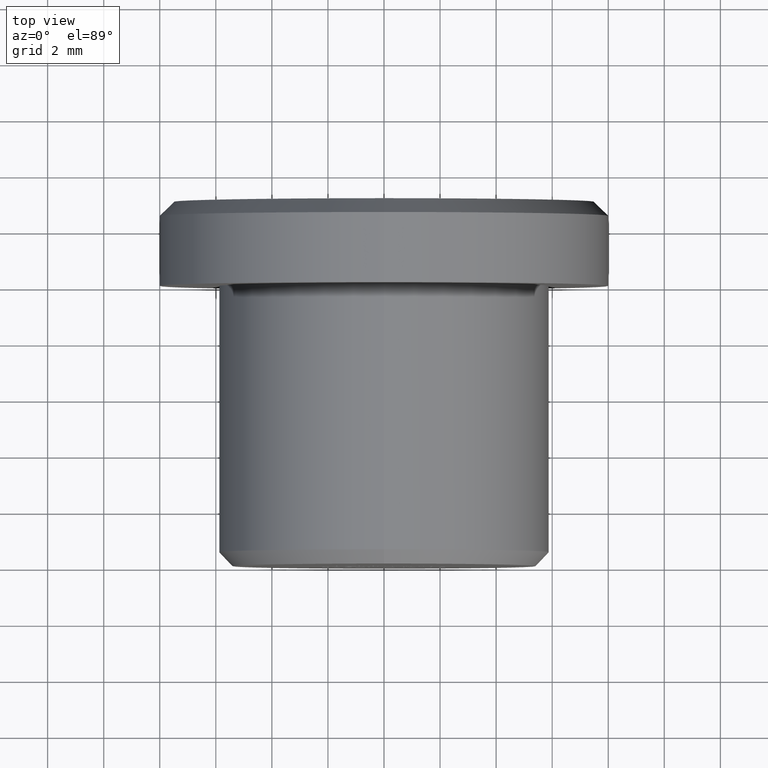
[diagram: clean part render]
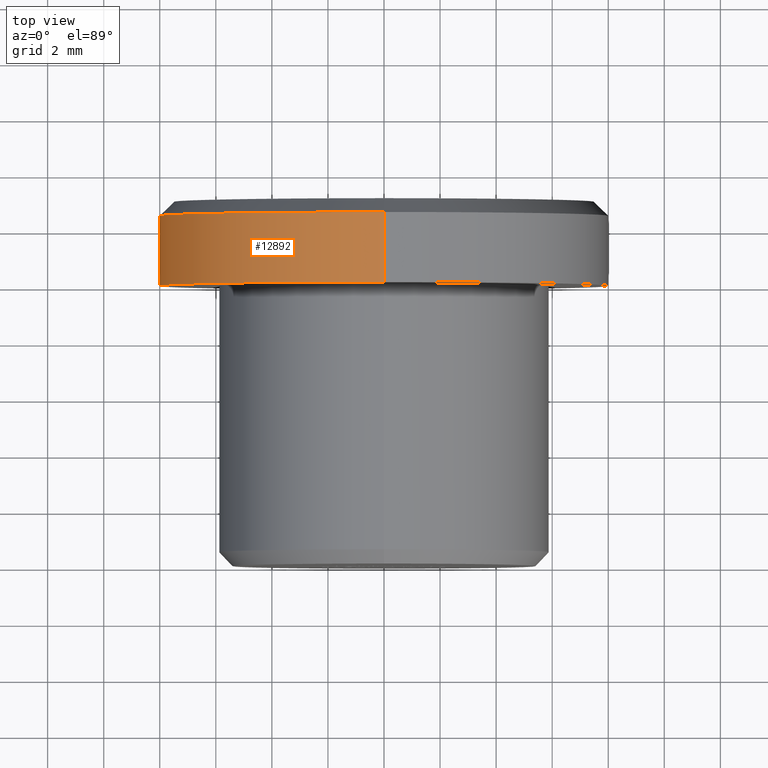
[diagram: same view with one face highlighted and labeled with its STEP entity id]
A machine part, top view. The second image highlights one B-rep face of the part: STEP entity #12892.
In plain terms, the highlighted cylindrical surface (partial cylindrical patch) has radius 8 mm, axis along (-0, -1, -0).
Its self-contained STEP definition (entity closure, byte-faithful):
#682 = DIRECTION ( 'NONE',  ( -0.0000000000000000000, -1.000000000000000000, -0.0000000000000000000 ) ) ;
#1339 = VERTEX_POINT ( 'NONE', #4602 ) ;
#1500 = CARTESIAN_POINT ( 'NONE',  ( 0.0000000000000000000, 0.0000000000000000000, -8.000000000000000000 ) ) ;
#1645 = AXIS2_PLACEMENT_3D ( 'NONE', #5263, #10872, #5217 ) ;
#2491 = VERTEX_POINT ( 'NONE', #12313 ) ;
#2601 = VECTOR ( 'NONE', #11688, 1000.000000000000000 ) ;
#2969 = DIRECTION ( 'NONE',  ( -0.0000000000000000000, -1.000000000000000000, -0.0000000000000000000 ) ) ;
#3663 = EDGE_CURVE ( 'NONE', #1339, #4440, #9339, .T. ) ;
#3738 = CIRCLE ( 'NONE', #10176, 8.000000000000000000 ) ;
#4431 = CARTESIAN_POINT ( 'NONE',  ( 9.797174393178825700E-016, 10.00000000000000000, 8.000000000000000000 ) ) ;
#4440 = VERTEX_POINT ( 'NONE', #13507 ) ;
#4579 = EDGE_LOOP ( 'NONE', ( #7210, #8826, #13480, #5301 ) ) ;
#4602 = CARTESIAN_POINT ( 'NONE',  ( 0.0000000000000000000, 12.49999999999999800, -8.000000000000000000 ) ) ;
#5217 = DIRECTION ( 'NONE',  ( 0.0000000000000000000, 0.0000000000000000000, 1.000000000000000000 ) ) ;
#5263 = CARTESIAN_POINT ( 'NONE',  ( 0.0000000000000000000, 12.49999999999999800, 0.0000000000000000000 ) ) ;
#5283 = CARTESIAN_POINT ( 'NONE',  ( 9.797174393178825700E-016, 0.0000000000000000000, 8.000000000000000000 ) ) ;
#5301 = ORIENTED_EDGE ( 'NONE', *, *, #12774, .F. ) ;
#5855 = CYLINDRICAL_SURFACE ( 'NONE', #9429, 8.000000000000000000 ) ;
#5997 = CARTESIAN_POINT ( 'NONE',  ( 0.0000000000000000000, 10.00000000000000000, 0.0000000000000000000 ) ) ;
#6611 = VECTOR ( 'NONE', #682, 1000.000000000000000 ) ;
#7210 = ORIENTED_EDGE ( 'NONE', *, *, #9303, .F. ) ;
#7658 = LINE ( 'NONE', #5283, #6611 ) ;
#8697 = CARTESIAN_POINT ( 'NONE',  ( 0.0000000000000000000, 0.0000000000000000000, 0.0000000000000000000 ) ) ;
#8826 = ORIENTED_EDGE ( 'NONE', *, *, #11141, .T. ) ;
#9303 = EDGE_CURVE ( 'NONE', #2491, #10826, #7658, .T. ) ;
#9339 = LINE ( 'NONE', #1500, #2601 ) ;
#9429 = AXIS2_PLACEMENT_3D ( 'NONE', #8697, #2969, #10869 ) ;
#10176 = AXIS2_PLACEMENT_3D ( 'NONE', #5997, #13883, #11427 ) ;
#10282 = CIRCLE ( 'NONE', #1645, 8.000000000000000000 ) ;
#10826 = VERTEX_POINT ( 'NONE', #4431 ) ;
#10869 = DIRECTION ( 'NONE',  ( 0.0000000000000000000, 0.0000000000000000000, -1.000000000000000000 ) ) ;
#10872 = DIRECTION ( 'NONE',  ( -0.0000000000000000000, -1.000000000000000000, -0.0000000000000000000 ) ) ;
#11141 = EDGE_CURVE ( 'NONE', #2491, #1339, #10282, .T. ) ;
#11427 = DIRECTION ( 'NONE',  ( 0.0000000000000000000, 0.0000000000000000000, -1.000000000000000000 ) ) ;
#11688 = DIRECTION ( 'NONE',  ( -0.0000000000000000000, -1.000000000000000000, -0.0000000000000000000 ) ) ;
#12035 = FACE_OUTER_BOUND ( 'NONE', #4579, .T. ) ;
#12313 = CARTESIAN_POINT ( 'NONE',  ( 9.797174393178825700E-016, 12.49999999999999800, 8.000000000000000000 ) ) ;
#12774 = EDGE_CURVE ( 'NONE', #10826, #4440, #3738, .T. ) ;
#12892 = ADVANCED_FACE ( 'NONE', ( #12035 ), #5855, .T. ) ;
#13480 = ORIENTED_EDGE ( 'NONE', *, *, #3663, .T. ) ;
#13507 = CARTESIAN_POINT ( 'NONE',  ( 0.0000000000000000000, 10.00000000000000000, -8.000000000000000000 ) ) ;
#13883 = DIRECTION ( 'NONE',  ( -0.0000000000000000000, -1.000000000000000000, -0.0000000000000000000 ) ) ;